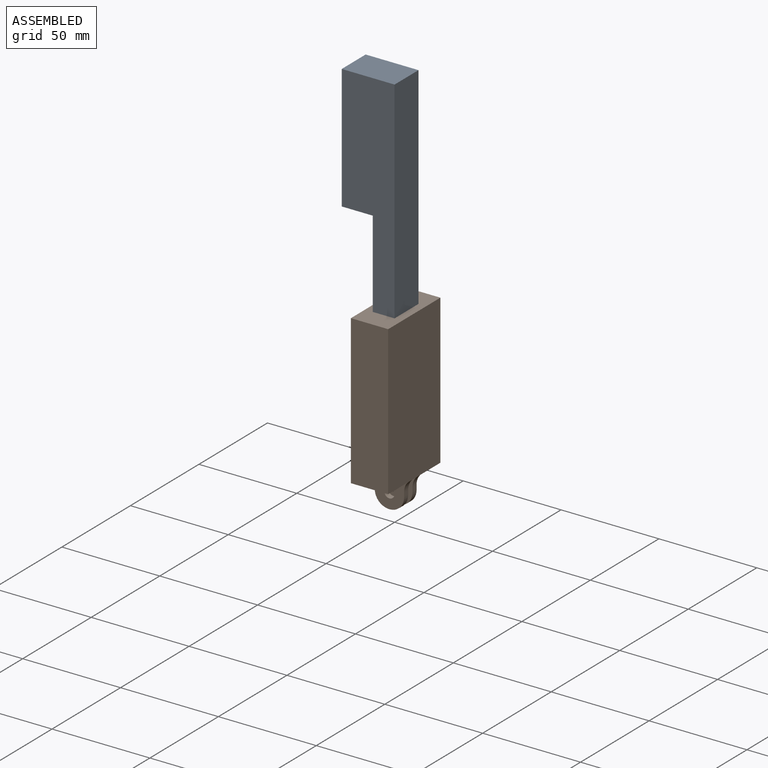
[diagram: assembled view]
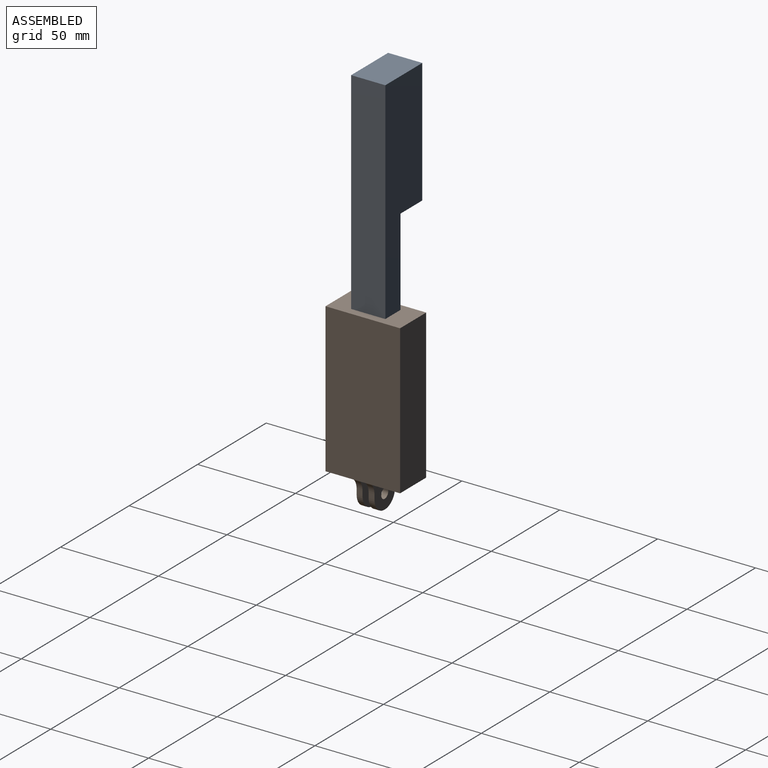
[diagram: assembled view, second angle]
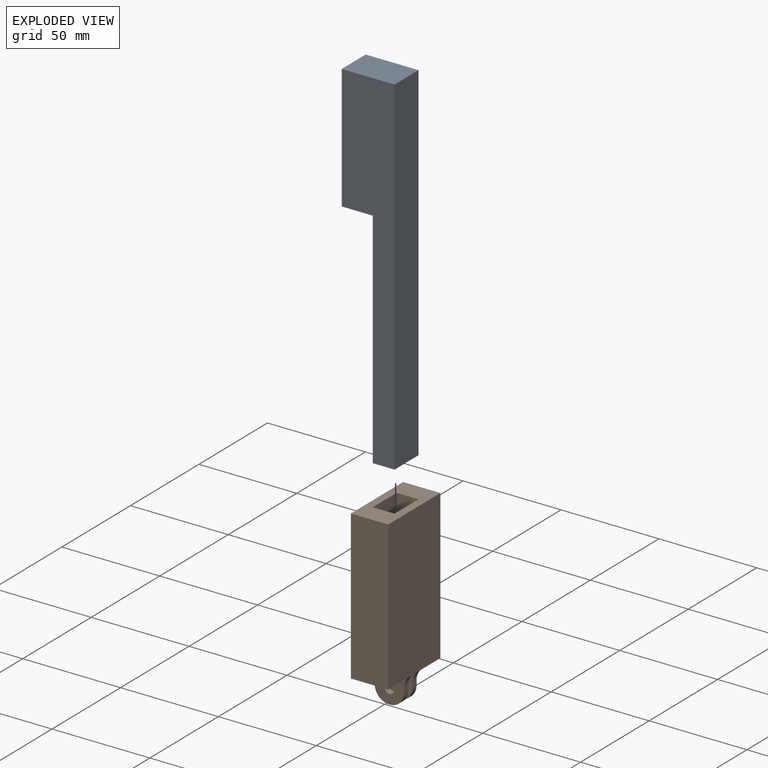
[diagram: exploded view]
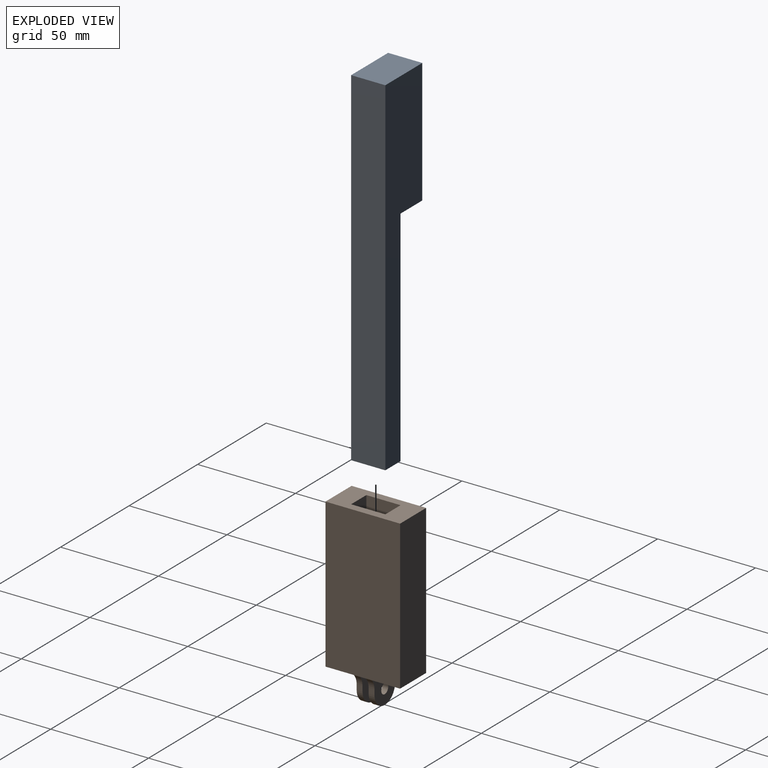
[diagram: exploded view, second angle]
ASSEMBLY  parts=2 mates=2
PART A: 8 faces, bbox 17.5x27x177.8 mm
  f0: plane 114.3x17.46mm, normal (0,-1,0), area 1996mm2, adj f1,f3,f5,f6
  f1: plane 177.8x26.99mm, normal (1,0,0), area 2983.9mm2, adj f0,f2,f4,f5,f6,f7
  f2: plane 177.8x17.46mm, normal (0,1,0), area 3104.8mm2, adj f1,f3,f4,f5
  f3: plane 177.8x26.99mm, normal (-1,0,0), area 2983.9mm2, adj f0,f2,f4,f5,f6,f7
  f4: plane 26.99x17.46mm, normal (0,0,1), area 471.3mm2, adj f1,f2,f3,f7
  f5: plane 17.46x11.11mm, normal (0,0,-1), area 194.1mm2, adj f0,f1,f2,f3
  f6: plane 17.46x15.88mm, normal (0,0,-1), area 277.2mm2, adj f0,f1,f3,f7
  f7: plane 63.5x17.46mm, normal (0,-1,0), area 1108.9mm2, adj f1,f3,f4,f6
PART B: 33 faces, bbox 19.1x38.1x91.2 mm
  f0: plane 19.05x3.12mm, normal (0,0,-1), area 59.4mm2, adj f3,f5,f14,f21
  f1: plane 19.05x14.49mm, normal (0,0,-1), area 276mm2, adj f3,f4,f5,f16
  f2: plane 38.1x19.05mm, normal (0,0,1), area 531.8mm2, adj f3,f4,f5,f6,f8,f9,f10,f11
  f3: plane 76.2x38.1mm, normal (-1,0,0), area 2903.2mm2, adj f0,f1,f2,f4,f6,f7,f26,f30
  f4: plane 76.2x19.05mm, normal (0,-1,0), area 1451.6mm2, adj f1,f2,f3,f5
  f5: plane 76.2x38.1mm, normal (1,0,0), area 2903.2mm2, adj f0,f1,f2,f4,f6,f7,f25,f29
  f6: plane 76.2x19.05mm, normal (0,1,0), area 1451.6mm2, adj f2,f3,f5,f7
  f7: plane 19.05x14.49mm, normal (0,0,-1), area 276mm2, adj f3,f5,f6,f19
  f8: plane 69.85x11.11mm, normal (0,1,0), area 776.2mm2, adj f2,f9,f11,f12
  f9: plane 69.85x17.46mm, normal (-1,0,0), area 1219.8mm2, adj f2,f8,f10,f12
  f10: plane 69.85x11.11mm, normal (0,-1,0), area 776.2mm2, adj f2,f9,f11,f12
  f11: plane 69.85x17.46mm, normal (1,0,0), area 1219.8mm2, adj f2,f8,f10,f12
  f12: plane 17.46x11.11mm, normal (0,0,1), area 194.1mm2, adj f8,f9,f10,f11
  f13: plane 3x2.51mm, normal (-1,0,0), area 7.5mm2, adj f14,f16,f30,f32
  f14: plane 19.05x15mm, normal (0,1,0), area 187.5mm2, adj f0,f13,f15,f17,f24,f29,f30,f31
  f15: plane 3x2.51mm, normal (1,0,0), area 7.5mm2, adj f14,f16,f29,f31
  f16: plane 19.05x15mm, normal (0,-1,0), area 187.5mm2, adj f1,f13,f15,f17,f24,f29,f30,f31
  f17: plane 3x0.2mm, normal (0,0,-1), area 0.6mm2, adj f14,f16,f31,f32
  f18: plane 3x2.51mm, normal (-1,0,0), area 7.5mm2, adj f19,f21,f26,f28
  f19: plane 19.05x15mm, normal (0,1,0), area 187.5mm2, adj f7,f18,f20,f22,f23,f25,f26,f27
  f20: plane 3x2.51mm, normal (1,0,0), area 7.5mm2, adj f19,f21,f25,f27
  f21: plane 19.05x15mm, normal (0,-1,0), area 187.5mm2, adj f0,f18,f20,f22,f23,f25,f26,f27
  f22: plane 3x0.2mm, normal (0,0,-1), area 0.6mm2, adj f19,f21,f27,f28
  f23: cylinder r=2.55mm len=5.1mm, axis (0,-1,0), area 48.1mm2, adj f19,f21
  f24: cylinder r=2.55mm len=5.1mm, axis (0,-1,0), area 48.1mm2, adj f14,f16
  f25: cylinder r=7.4mm len=5.09mm, axis (0,-1,0), area 16.8mm2, adj f5,f19,f20,f21
  f26: cylinder r=7.4mm len=5.09mm, axis (0,-1,0), area 16.8mm2, adj f3,f18,f19,f21
  f27: cylinder r=7.4mm len=7.4mm, axis (0,1,0), area 34.9mm2, adj f19,f20,f21,f22
  f28: cylinder r=7.4mm len=7.4mm, axis (0,-1,0), area 34.9mm2, adj f18,f19,f21,f22
  f29: cylinder r=7.4mm len=5.09mm, axis (0,-1,0), area 16.8mm2, adj f5,f14,f15,f16
  f30: cylinder r=7.4mm len=5.09mm, axis (0,-1,0), area 16.8mm2, adj f3,f13,f14,f16
  f31: cylinder r=7.4mm len=7.4mm, axis (0,1,0), area 34.9mm2, adj f14,f15,f16,f17
  f32: cylinder r=7.4mm len=7.4mm, axis (0,-1,0), area 34.9mm2, adj f13,f14,f16,f17
PLACE A rot(axis=(0,0,-1),90deg) t=(5.56,0,-69.85)mm
PLACE B t=(5.56,0,-76.2)mm fixed
MATE planar A.f5 <-> B.f12  axis (0,0,-1) through (5.56,0,-69.85)mm
MATE slider B.f12 <-> A.f5  axis (0,0,1) through (5.56,0,-69.85)mm
